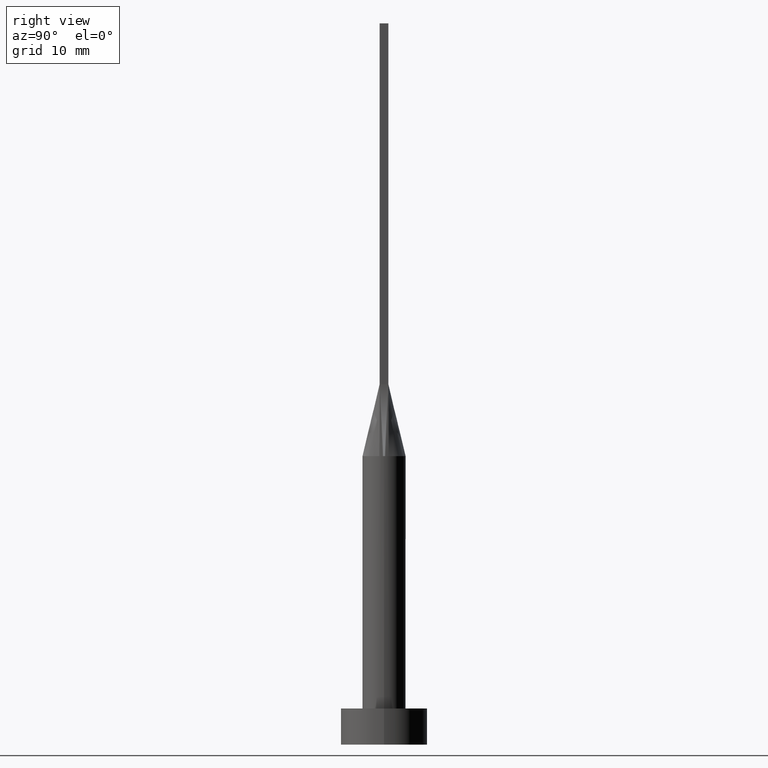
[diagram: clean part render]
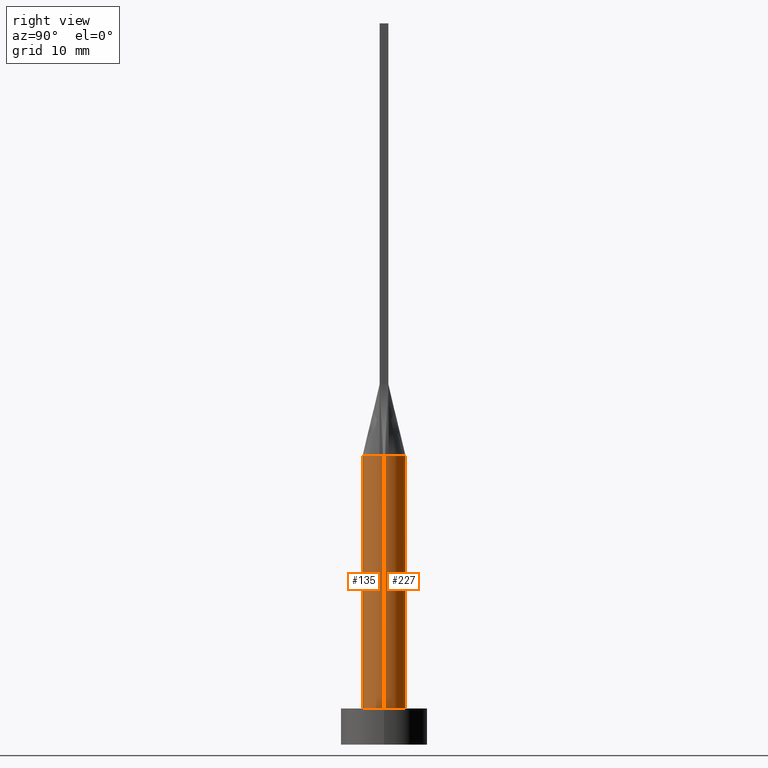
[diagram: same view with one multi-face feature highlighted, each face labeled with its STEP entity id]
A machine part, right view. The highlighted faces form ONE feature: a constant-radius fillet chain: 2 tangent blend faces with common blend radius 3 mm. The faces share edges in the B-rep.
Their STEP definitions:
[1] entity #227 (Cylinder):
#4 = CARTESIAN_POINT ( 'NONE',  ( -2.878980386154874616, 0.8781411751610629368, 39.99999999999999289 ) ) ;
#6 = DIRECTION ( 'NONE',  ( 0.000000000000000000, 0.000000000000000000, 1.000000000000000000 ) ) ;
#8 = CARTESIAN_POINT ( 'NONE',  ( 0.4026715616377294915, 2.999999999999999556, 40.00000000000000000 ) ) ;
#11 = EDGE_CURVE ( 'NONE', #60, #475, #310, .T. ) ;
#28 = ORIENTED_EDGE ( 'NONE', *, *, #11, .T. ) ;
#44 = VERTEX_POINT ( 'NONE', #517 ) ;
#48 = CIRCLE ( 'NONE', #191, 3.000000000000000444 ) ;
#52 = EDGE_CURVE ( 'NONE', #358, #44, #48, .T. ) ;
#53 = CARTESIAN_POINT ( 'NONE',  ( -0.8041209001220690489, 2.916015559847871419, 40.00000000000000000 ) ) ;
#57 = CARTESIAN_POINT ( 'NONE',  ( 0.000000000000000000, 0.000000000000000000, 5.000000000000000000 ) ) ;
#60 = VERTEX_POINT ( 'NONE', #522 ) ;
#65 = DIRECTION ( 'NONE',  ( 1.000000000000000000, 0.000000000000000000, 0.000000000000000000 ) ) ;
#69 = VERTEX_POINT ( 'NONE', #335 ) ;
#89 = CARTESIAN_POINT ( 'NONE',  ( 0.000000000000000000, 0.000000000000000000, 40.00000000000000000 ) ) ;
#94 = CARTESIAN_POINT ( 'NONE',  ( -3.000000000000000444, 0.000000000000000000, 40.00000000000000000 ) ) ;
#101 = CARTESIAN_POINT ( 'NONE',  ( -2.931320679040856803, 0.6395611071856786012, 40.00000000000000000 ) ) ;
#106 = DIRECTION ( 'NONE',  ( 0.000000000000000000, 0.000000000000000000, 1.000000000000000000 ) ) ;
#123 = DIRECTION ( 'NONE',  ( -1.000000000000000000, 0.000000000000000000, 0.000000000000000000 ) ) ;
#125 = B_SPLINE_CURVE_WITH_KNOTS ( 'NONE', 3,
 ( #320, #463, #504, #323, #270, #276, #458, #543, #8, #496, #53, #546, #234, #228, #187, #541, #4, #101 ),
 .UNSPECIFIED., .F., .F.,
 ( 4, 2, 2, 2, 2, 2, 2, 2, 4 ),
 ( 0.000000000000000000, 0.1250000000000000000, 0.2500000000000000000, 0.3750000000000000000, 0.5000000000000000000, 0.6250000000000000000, 0.7500000000000000000, 0.8750000000000000000, 1.000000000000000000 ),
 .UNSPECIFIED. ) ;
#129 = CARTESIAN_POINT ( 'NONE',  ( -3.000000000000000444, 0.000000000000000000, 5.000000000000000000 ) ) ;
#159 = EDGE_CURVE ( 'NONE', #60, #69, #538, .T. ) ;
#187 = CARTESIAN_POINT ( 'NONE',  ( -2.518011668798964653, 1.657305971825549840, 40.00000000000001421 ) ) ;
#188 = ORIENTED_EDGE ( 'NONE', *, *, #159, .F. ) ;
#191 = AXIS2_PLACEMENT_3D ( 'NONE', #342, #106, #65 ) ;
#227 = ADVANCED_FACE ( 'NONE', ( #313 ), #494, .T. ) ;
#228 = CARTESIAN_POINT ( 'NONE',  ( -2.328745122427008152, 1.922758842442225280, 39.99999999999998579 ) ) ;
#233 = AXIS2_PLACEMENT_3D ( 'NONE', #535, #577, #481 ) ;
#234 = CARTESIAN_POINT ( 'NONE',  ( -1.829136458871247761, 2.402980488111649660, 39.99999999999999289 ) ) ;
#265 = DIRECTION ( 'NONE',  ( -0.000000000000000000, -0.000000000000000000, -1.000000000000000000 ) ) ;
#267 = DIRECTION ( 'NONE',  ( -0.000000000000000000, -0.000000000000000000, -1.000000000000000000 ) ) ;
#270 = CARTESIAN_POINT ( 'NONE',  ( 2.328745122427009040, 1.922758842442225946, 39.99999999999999289 ) ) ;
#271 = CIRCLE ( 'NONE', #333, 3.000000000000000444 ) ;
#274 = DIRECTION ( 'NONE',  ( -0.000000000000000000, -0.000000000000000000, -1.000000000000000000 ) ) ;
#276 = CARTESIAN_POINT ( 'NONE',  ( 1.829136458871247761, 2.402980488111650992, 39.99999999999997868 ) ) ;
#277 = CARTESIAN_POINT ( 'NONE',  ( -2.931320679040856803, 0.6395611071856786012, 40.00000000000000000 ) ) ;
#310 = LINE ( 'NONE', #492, #336 ) ;
#313 = FACE_OUTER_BOUND ( 'NONE', #515, .T. ) ;
#319 = LINE ( 'NONE', #94, #410 ) ;
#320 = CARTESIAN_POINT ( 'NONE',  ( 2.931303352270923757, 0.6395574164693091923, 40.00000000000000000 ) ) ;
#323 = CARTESIAN_POINT ( 'NONE',  ( 2.518011668798964209, 1.657305971825549840, 40.00000000000001421 ) ) ;
#332 = EDGE_CURVE ( 'NONE', #475, #579, #271, .T. ) ;
#333 = AXIS2_PLACEMENT_3D ( 'NONE', #57, #6, #408 ) ;
#335 = CARTESIAN_POINT ( 'NONE',  ( 2.931303352270923757, 0.6395574164693091923, 40.00000000000000000 ) ) ;
#336 = VECTOR ( 'NONE', #265, 1000.000000000000000 ) ;
#342 = CARTESIAN_POINT ( 'NONE',  ( 0.000000000000000000, 0.000000000000000000, 40.00000000000000000 ) ) ;
#350 = EDGE_CURVE ( 'NONE', #69, #358, #125, .T. ) ;
#358 = VERTEX_POINT ( 'NONE', #277 ) ;
#368 = ORIENTED_EDGE ( 'NONE', *, *, #52, .F. ) ;
#373 = ORIENTED_EDGE ( 'NONE', *, *, #350, .F. ) ;
#404 = EDGE_CURVE ( 'NONE', #44, #579, #319, .T. ) ;
#408 = DIRECTION ( 'NONE',  ( 1.000000000000000000, 0.000000000000000000, 0.000000000000000000 ) ) ;
#409 = AXIS2_PLACEMENT_3D ( 'NONE', #89, #267, #123 ) ;
#410 = VECTOR ( 'NONE', #274, 1000.000000000000000 ) ;
#458 = CARTESIAN_POINT ( 'NONE',  ( 1.517787371616672099, 2.616501225271827824, 39.99999999999999289 ) ) ;
#462 = ORIENTED_EDGE ( 'NONE', *, *, #332, .T. ) ;
#463 = CARTESIAN_POINT ( 'NONE',  ( 2.878980386154874616, 0.8781411751610636029, 39.99999999999999289 ) ) ;
#475 = VERTEX_POINT ( 'NONE', #516 ) ;
#481 = DIRECTION ( 'NONE',  ( 1.000000000000000000, 0.000000000000000000, 0.000000000000000000 ) ) ;
#483 = ORIENTED_EDGE ( 'NONE', *, *, #404, .F. ) ;
#492 = CARTESIAN_POINT ( 'NONE',  ( 3.000000000000000444, 3.673940397442060361E-16, 40.00000000000000000 ) ) ;
#494 = CYLINDRICAL_SURFACE ( 'NONE', #409, 3.000000000000000444 ) ;
#496 = CARTESIAN_POINT ( 'NONE',  ( -0.4026715616377299356, 2.999999999999999556, 40.00000000000000000 ) ) ;
#504 = CARTESIAN_POINT ( 'NONE',  ( 2.792624347712116872, 1.135030881087315979, 40.00000000000002132 ) ) ;
#515 = EDGE_LOOP ( 'NONE', ( #188, #28, #462, #483, #368, #373 ) ) ;
#516 = CARTESIAN_POINT ( 'NONE',  ( 3.000000000000000444, 3.673940397442060361E-16, 5.000000000000000000 ) ) ;
#517 = CARTESIAN_POINT ( 'NONE',  ( -2.999603793582328315, -7.025298958605770567E-16, 40.00000000000000000 ) ) ;
#522 = CARTESIAN_POINT ( 'NONE',  ( 2.999603793582328759, 7.166726372340513095E-16, 40.00000000000000000 ) ) ;
#535 = CARTESIAN_POINT ( 'NONE',  ( 0.000000000000000000, 0.000000000000000000, 40.00000000000000000 ) ) ;
#538 = CIRCLE ( 'NONE', #233, 3.000000000000000444 ) ;
#541 = CARTESIAN_POINT ( 'NONE',  ( -2.792624347712117761, 1.135030881087315313, 40.00000000000001421 ) ) ;
#543 = CARTESIAN_POINT ( 'NONE',  ( 0.8041209001220689379, 2.916015559847871863, 40.00000000000000000 ) ) ;
#546 = CARTESIAN_POINT ( 'NONE',  ( -1.517787371616671654, 2.616501225271827380, 40.00000000000000000 ) ) ;
#577 = DIRECTION ( 'NONE',  ( 0.000000000000000000, 0.000000000000000000, 1.000000000000000000 ) ) ;
#579 = VERTEX_POINT ( 'NONE', #129 ) ;
[2] entity #135 (Cylinder):
#11 = EDGE_CURVE ( 'NONE', #60, #475, #310, .T. ) ;
#34 = DIRECTION ( 'NONE',  ( -0.000000000000000000, -0.000000000000000000, -1.000000000000000000 ) ) ;
#38 = DIRECTION ( 'NONE',  ( -1.000000000000000000, 0.000000000000000000, 0.000000000000000000 ) ) ;
#40 = FACE_OUTER_BOUND ( 'NONE', #245, .T. ) ;
#44 = VERTEX_POINT ( 'NONE', #517 ) ;
#60 = VERTEX_POINT ( 'NONE', #522 ) ;
#64 = CIRCLE ( 'NONE', #164, 3.000000000000000444 ) ;
#79 = DIRECTION ( 'NONE',  ( 1.000000000000000000, 0.000000000000000000, 0.000000000000000000 ) ) ;
#80 = CARTESIAN_POINT ( 'NONE',  ( 0.000000000000000000, 0.000000000000000000, 40.00000000000000000 ) ) ;
#83 = CIRCLE ( 'NONE', #353, 3.000000000000000444 ) ;
#87 = VERTEX_POINT ( 'NONE', #199 ) ;
#94 = CARTESIAN_POINT ( 'NONE',  ( -3.000000000000000444, 0.000000000000000000, 40.00000000000000000 ) ) ;
#95 = EDGE_CURVE ( 'NONE', #495, #60, #345, .T. ) ;
#105 = DIRECTION ( 'NONE',  ( 1.000000000000000000, 0.000000000000000000, 0.000000000000000000 ) ) ;
#114 = DIRECTION ( 'NONE',  ( 1.000000000000000000, -8.881784197001252323E-15, 0.000000000000000000 ) ) ;
#120 = CARTESIAN_POINT ( 'NONE',  ( 0.000000000000000000, 0.000000000000000000, 40.00000000000000000 ) ) ;
#121 = CYLINDRICAL_SURFACE ( 'NONE', #209, 3.000000000000000444 ) ;
#122 = DIRECTION ( 'NONE',  ( 0.000000000000000000, 0.000000000000000000, 1.000000000000000000 ) ) ;
#129 = CARTESIAN_POINT ( 'NONE',  ( -3.000000000000000444, 0.000000000000000000, 5.000000000000000000 ) ) ;
#134 = DIRECTION ( 'NONE',  ( 0.000000000000000000, 0.000000000000000000, 1.000000000000000000 ) ) ;
#135 = ADVANCED_FACE ( 'NONE', ( #40 ), #121, .T. ) ;
#145 = AXIS2_PLACEMENT_3D ( 'NONE', #198, #157, #105 ) ;
#157 = DIRECTION ( 'NONE',  ( 0.000000000000000000, 0.000000000000000000, 1.000000000000000000 ) ) ;
#158 = DIRECTION ( 'NONE',  ( 0.000000000000000000, 0.000000000000000000, 1.000000000000000000 ) ) ;
#164 = AXIS2_PLACEMENT_3D ( 'NONE', #120, #122, #79 ) ;
#171 = ORIENTED_EDGE ( 'NONE', *, *, #442, .T. ) ;
#192 = ORIENTED_EDGE ( 'NONE', *, *, #11, .F. ) ;
#198 = CARTESIAN_POINT ( 'NONE',  ( 0.000000000000000000, 0.000000000000000000, 5.000000000000000000 ) ) ;
#199 = CARTESIAN_POINT ( 'NONE',  ( -2.931315536094174057, -0.6395601373676296220, 40.00000000000000000 ) ) ;
#208 = ORIENTED_EDGE ( 'NONE', *, *, #404, .T. ) ;
#209 = AXIS2_PLACEMENT_3D ( 'NONE', #80, #34, #38 ) ;
#242 = AXIS2_PLACEMENT_3D ( 'NONE', #564, #158, #114 ) ;
#245 = EDGE_LOOP ( 'NONE', ( #192, #355, #254, #282, #208, #171 ) ) ;
#250 = CIRCLE ( 'NONE', #145, 3.000000000000000444 ) ;
#254 = ORIENTED_EDGE ( 'NONE', *, *, #533, .F. ) ;
#265 = DIRECTION ( 'NONE',  ( -0.000000000000000000, -0.000000000000000000, -1.000000000000000000 ) ) ;
#274 = DIRECTION ( 'NONE',  ( -0.000000000000000000, -0.000000000000000000, -1.000000000000000000 ) ) ;
#282 = ORIENTED_EDGE ( 'NONE', *, *, #394, .F. ) ;
#286 = CARTESIAN_POINT ( 'NONE',  ( 2.931332910560268790, -0.6395638358681950963, 40.00000000000000000 ) ) ;
#310 = LINE ( 'NONE', #492, #336 ) ;
#319 = LINE ( 'NONE', #94, #410 ) ;
#336 = VECTOR ( 'NONE', #265, 1000.000000000000000 ) ;
#345 = CIRCLE ( 'NONE', #242, 3.000000000000000444 ) ;
#353 = AXIS2_PLACEMENT_3D ( 'NONE', #416, #134, #405 ) ;
#355 = ORIENTED_EDGE ( 'NONE', *, *, #95, .F. ) ;
#394 = EDGE_CURVE ( 'NONE', #44, #87, #83, .T. ) ;
#404 = EDGE_CURVE ( 'NONE', #44, #579, #319, .T. ) ;
#405 = DIRECTION ( 'NONE',  ( 1.000000000000000000, 0.000000000000000000, 0.000000000000000000 ) ) ;
#410 = VECTOR ( 'NONE', #274, 1000.000000000000000 ) ;
#416 = CARTESIAN_POINT ( 'NONE',  ( 0.000000000000000000, 0.000000000000000000, 40.00000000000000000 ) ) ;
#442 = EDGE_CURVE ( 'NONE', #579, #475, #250, .T. ) ;
#475 = VERTEX_POINT ( 'NONE', #516 ) ;
#492 = CARTESIAN_POINT ( 'NONE',  ( 3.000000000000000444, 3.673940397442060361E-16, 40.00000000000000000 ) ) ;
#495 = VERTEX_POINT ( 'NONE', #286 ) ;
#516 = CARTESIAN_POINT ( 'NONE',  ( 3.000000000000000444, 3.673940397442060361E-16, 5.000000000000000000 ) ) ;
#517 = CARTESIAN_POINT ( 'NONE',  ( -2.999603793582328315, -7.025298958605770567E-16, 40.00000000000000000 ) ) ;
#522 = CARTESIAN_POINT ( 'NONE',  ( 2.999603793582328759, 7.166726372340513095E-16, 40.00000000000000000 ) ) ;
#533 = EDGE_CURVE ( 'NONE', #87, #495, #64, .T. ) ;
#564 = CARTESIAN_POINT ( 'NONE',  ( 0.000000000000000000, 0.000000000000000000, 40.00000000000000000 ) ) ;
#579 = VERTEX_POINT ( 'NONE', #129 ) ;